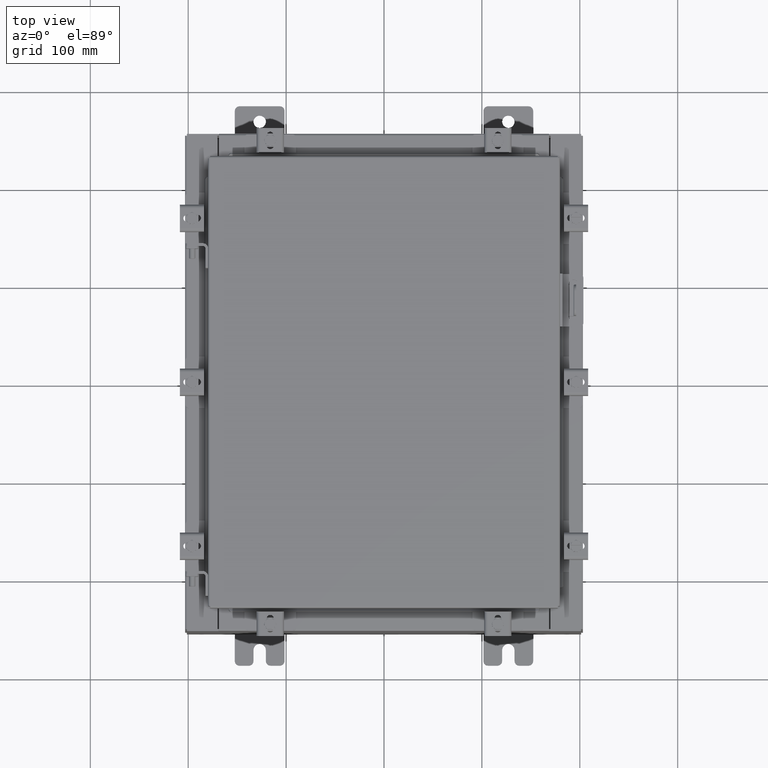
[diagram: clean part render]
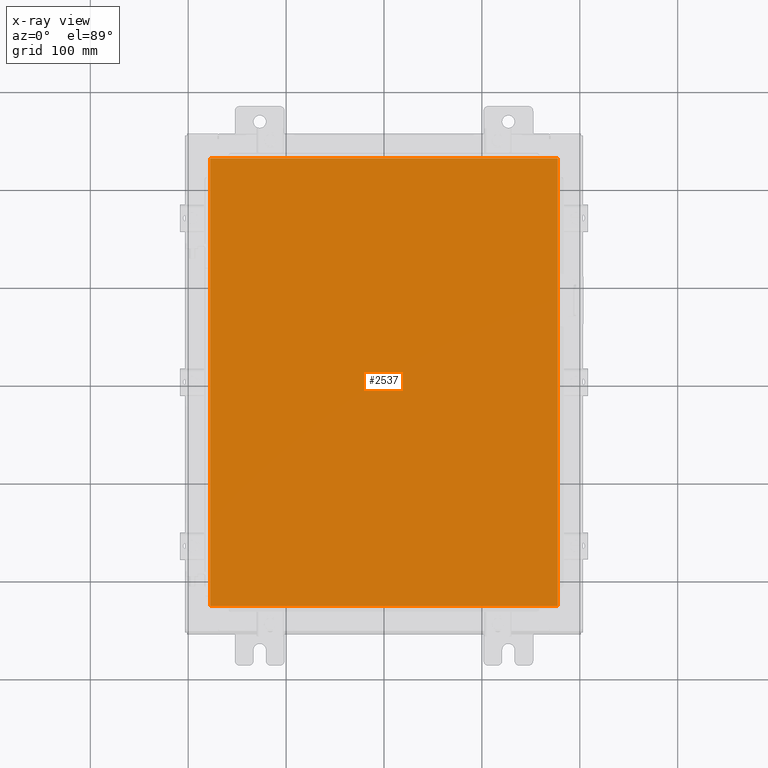
[diagram: x-ray — body ghosted, one internal face saturated and labeled with its STEP entity id]
A machine part, top view, then the same camera in x-ray: the body is ghosted and one INTERNAL B-rep face — a face not visible from any outside direction — is saturated and labeled: STEP entity #2537.
In plain terms, the highlighted planar face has unit normal (0, 0, -1).
Its self-contained STEP definition (entity closure, byte-faithful):
#207 = VECTOR ( 'NONE', #15580, 39.37007874015748100 ) ;
#211 = ORIENTED_EDGE ( 'NONE', *, *, #2936, .F. ) ;
#304 = DIRECTION ( 'NONE',  ( -1.000000000000000000, 0.0000000000000000000, -0.0000000000000000000 ) ) ;
#1347 = DIRECTION ( 'NONE',  ( 0.0000000000000000000, 1.000000000000000000, 0.0000000000000000000 ) ) ;
#2374 = CARTESIAN_POINT ( 'NONE',  ( 6.990299999999996800, 9.006299999999996000, -0.07469999999999965600 ) ) ;
#2537 = ADVANCED_FACE ( 'NONE', ( #15498 ), #3729, .T. ) ;
#2936 = EDGE_CURVE ( 'NONE', #5364, #3173, #13039, .T. ) ;
#2965 = EDGE_CURVE ( 'NONE', #7286, #3753, #3772, .T. ) ;
#3173 = VERTEX_POINT ( 'NONE', #15799 ) ;
#3397 = EDGE_CURVE ( 'NONE', #3753, #5364, #9491, .T. ) ;
#3729 = PLANE ( 'NONE',  #15281 ) ;
#3753 = VERTEX_POINT ( 'NONE', #19925 ) ;
#3772 = LINE ( 'NONE', #13517, #21723 ) ;
#4818 = EDGE_LOOP ( 'NONE', ( #211, #13860, #11706, #7546 ) ) ;
#5364 = VERTEX_POINT ( 'NONE', #12488 ) ;
#7272 = CARTESIAN_POINT ( 'NONE',  ( 0.0000000000000000000, 0.0000000000000000000, -0.07470000000000000300 ) ) ;
#7286 = VERTEX_POINT ( 'NONE', #14107 ) ;
#7546 = ORIENTED_EDGE ( 'NONE', *, *, #22415, .F. ) ;
#8625 = CARTESIAN_POINT ( 'NONE',  ( -6.990300000000003100, -9.006300000000003100, -0.07470000000000019700 ) ) ;
#9324 = DIRECTION ( 'NONE',  ( -1.000000000000000000, -0.0000000000000000000, -0.0000000000000000000 ) ) ;
#9491 = LINE ( 'NONE', #8625, #207 ) ;
#10720 = DIRECTION ( 'NONE',  ( 0.0000000000000000000, 0.0000000000000000000, -1.000000000000000000 ) ) ;
#11706 = ORIENTED_EDGE ( 'NONE', *, *, #2965, .F. ) ;
#11766 = CARTESIAN_POINT ( 'NONE',  ( 6.990299999999996800, -9.006300000000003100, -0.07469999999999965600 ) ) ;
#12309 = LINE ( 'NONE', #2374, #21566 ) ;
#12488 = CARTESIAN_POINT ( 'NONE',  ( 6.990299999999996800, -9.006300000000003100, -0.07470000000000000300 ) ) ;
#13039 = LINE ( 'NONE', #11766, #22249 ) ;
#13517 = CARTESIAN_POINT ( 'NONE',  ( -6.990300000000003100, 9.006299999999996000, -0.07470000000000019700 ) ) ;
#13860 = ORIENTED_EDGE ( 'NONE', *, *, #3397, .F. ) ;
#14107 = CARTESIAN_POINT ( 'NONE',  ( -6.990300000000003100, 9.006299999999996000, -0.07470000000000000300 ) ) ;
#15272 = DIRECTION ( 'NONE',  ( 0.0000000000000000000, -1.000000000000000000, 0.0000000000000000000 ) ) ;
#15281 = AXIS2_PLACEMENT_3D ( 'NONE', #7272, #10720, #304 ) ;
#15498 = FACE_OUTER_BOUND ( 'NONE', #4818, .T. ) ;
#15580 = DIRECTION ( 'NONE',  ( 1.000000000000000000, -0.0000000000000000000, -0.0000000000000000000 ) ) ;
#15799 = CARTESIAN_POINT ( 'NONE',  ( 6.990299999999996000, 9.006299999999996000, -0.07470000000000000300 ) ) ;
#19925 = CARTESIAN_POINT ( 'NONE',  ( -6.990300000000002200, -9.006300000000003100, -0.07470000000000000300 ) ) ;
#21566 = VECTOR ( 'NONE', #9324, 39.37007874015748100 ) ;
#21723 = VECTOR ( 'NONE', #15272, 39.37007874015748100 ) ;
#22249 = VECTOR ( 'NONE', #1347, 39.37007874015748100 ) ;
#22415 = EDGE_CURVE ( 'NONE', #3173, #7286, #12309, .T. ) ;